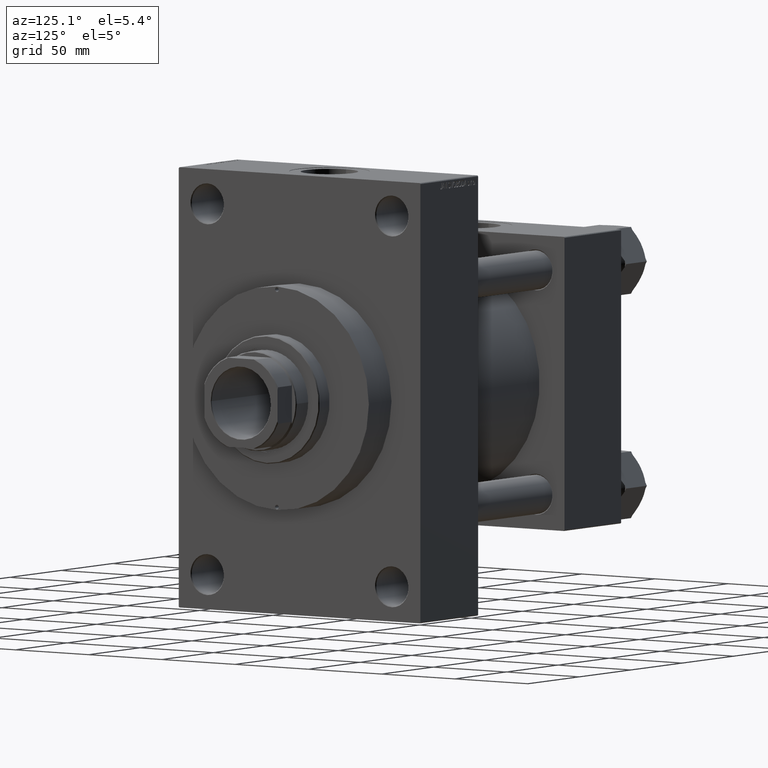
[diagram: clean part render]
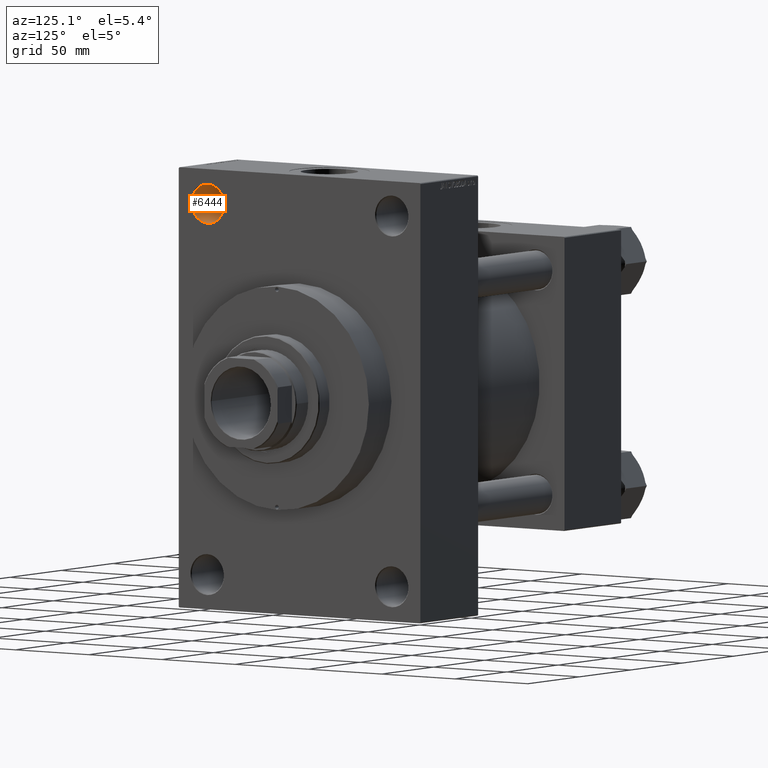
[diagram: same view with one face highlighted and labeled with its STEP entity id]
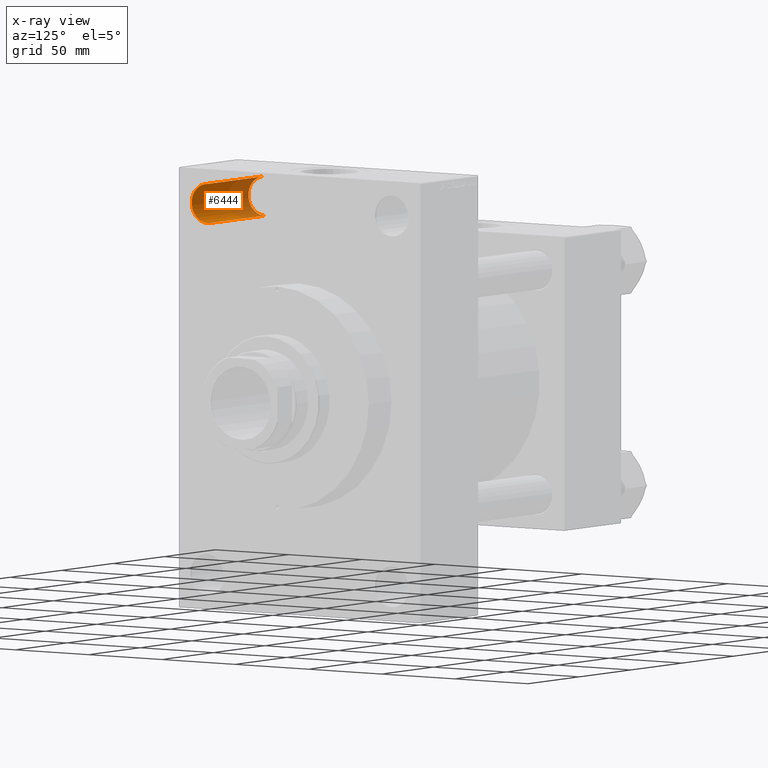
[diagram: x-ray of the same camera — body ghosted, the highlighted face saturated]
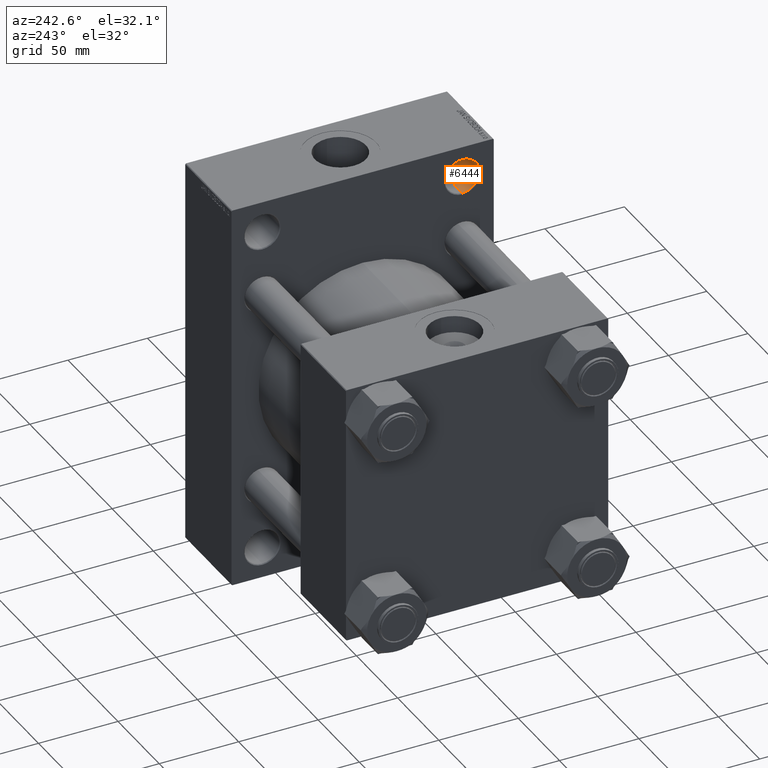
[diagram: same view with one face highlighted and labeled with its STEP entity id]
A machine part, auxiliary view. The second image highlights one B-rep face of the part: STEP entity #6444.
The next image is the same camera in x-ray: the body ghosted, the highlighted face saturated — about 35% of this face is hidden behind the body in this view.
A second angle (auxiliary view) of the same face is appended — the face is thin or edge-on in the first view.
In plain terms, the highlighted cylindrical surface (edge-blend (fillet) strip) has radius 11 mm, axis along (1, 0, 0).
Its self-contained STEP definition (entity closure, byte-faithful):
#1006 = AXIS2_PLACEMENT_3D ( 'NONE', #47656, #7036, #29301 ) ;
#1268 = DIRECTION ( 'NONE',  ( 1.000000000000000000, -0.000000000000000000, -0.000000000000000000 ) ) ;
#1901 = CARTESIAN_POINT ( 'NONE',  ( 194.4999999999999716, -63.00000000000000000, 114.9999999999999716 ) ) ;
#3783 = CARTESIAN_POINT ( 'NONE',  ( 139.5000000000000000, -63.00000000000000000, 92.99999999999998579 ) ) ;
#4919 = EDGE_CURVE ( 'NONE', #37098, #20580, #34857, .T. ) ;
#5878 = ORIENTED_EDGE ( 'NONE', *, *, #20787, .F. ) ;
#6444 = ADVANCED_FACE ( 'NONE', ( #29054 ), #26379, .F. ) ;
#7036 = DIRECTION ( 'NONE',  ( 1.000000000000000000, -0.000000000000000000, -0.000000000000000000 ) ) ;
#7440 = ORIENTED_EDGE ( 'NONE', *, *, #34385, .T. ) ;
#9382 = DIRECTION ( 'NONE',  ( 1.000000000000000000, -0.000000000000000000, -0.000000000000000000 ) ) ;
#12864 = DIRECTION ( 'NONE',  ( 1.000000000000000000, 0.000000000000000000, 0.000000000000000000 ) ) ;
#16302 = CARTESIAN_POINT ( 'NONE',  ( 139.5000000000000000, -63.00000000000000000, 114.9999999999999716 ) ) ;
#20580 = VERTEX_POINT ( 'NONE', #16302 ) ;
#20787 = EDGE_CURVE ( 'NONE', #37098, #47465, #42537, .T. ) ;
#22038 = CIRCLE ( 'NONE', #35923, 10.99999999999999645 ) ;
#24763 = DIRECTION ( 'NONE',  ( -1.000000000000000000, -0.000000000000000000, -0.000000000000000000 ) ) ;
#26126 = VECTOR ( 'NONE', #9382, 1000.000000000000000 ) ;
#26209 = CARTESIAN_POINT ( 'NONE',  ( 194.4999999999999716, -63.00000000000000000, 92.99999999999998579 ) ) ;
#26379 = CYLINDRICAL_SURFACE ( 'NONE', #1006, 10.99999999999999645 ) ;
#28817 = EDGE_LOOP ( 'NONE', ( #33127, #44128, #7440, #5878 ) ) ;
#29054 = FACE_OUTER_BOUND ( 'NONE', #28817, .T. ) ;
#29301 = DIRECTION ( 'NONE',  ( 0.000000000000000000, 0.000000000000000000, -1.000000000000000000 ) ) ;
#32017 = DIRECTION ( 'NONE',  ( 0.000000000000000000, 0.000000000000000000, 1.000000000000000000 ) ) ;
#33127 = ORIENTED_EDGE ( 'NONE', *, *, #4919, .T. ) ;
#34200 = CARTESIAN_POINT ( 'NONE',  ( 107.8873016277919135, -63.00000000000000000, 114.9999999999999716 ) ) ;
#34385 = EDGE_CURVE ( 'NONE', #40630, #47465, #22038, .T. ) ;
#34857 = CIRCLE ( 'NONE', #43349, 10.99999999999999645 ) ;
#35923 = AXIS2_PLACEMENT_3D ( 'NONE', #42142, #12864, #41912 ) ;
#37098 = VERTEX_POINT ( 'NONE', #3783 ) ;
#37594 = LINE ( 'NONE', #34200, #38418 ) ;
#38237 = EDGE_CURVE ( 'NONE', #20580, #40630, #37594, .T. ) ;
#38418 = VECTOR ( 'NONE', #1268, 1000.000000000000000 ) ;
#39152 = CARTESIAN_POINT ( 'NONE',  ( 107.8873016277919135, -63.00000000000000000, 92.99999999999998579 ) ) ;
#40630 = VERTEX_POINT ( 'NONE', #1901 ) ;
#41912 = DIRECTION ( 'NONE',  ( 0.000000000000000000, 0.000000000000000000, 1.000000000000000000 ) ) ;
#42142 = CARTESIAN_POINT ( 'NONE',  ( 194.4999999999999716, -63.00000000000000000, 103.9999999999999858 ) ) ;
#42537 = LINE ( 'NONE', #39152, #26126 ) ;
#43349 = AXIS2_PLACEMENT_3D ( 'NONE', #46991, #24763, #32017 ) ;
#44128 = ORIENTED_EDGE ( 'NONE', *, *, #38237, .T. ) ;
#46991 = CARTESIAN_POINT ( 'NONE',  ( 139.5000000000000000, -63.00000000000000000, 103.9999999999999858 ) ) ;
#47465 = VERTEX_POINT ( 'NONE', #26209 ) ;
#47656 = CARTESIAN_POINT ( 'NONE',  ( 107.8873016277919135, -63.00000000000000000, 103.9999999999999858 ) ) ;